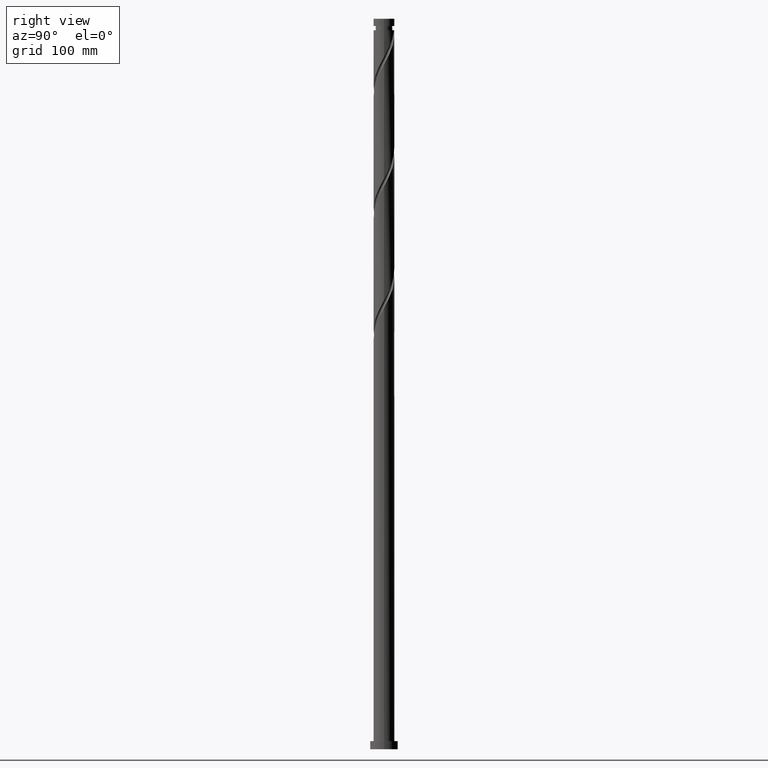
[diagram: clean part render]
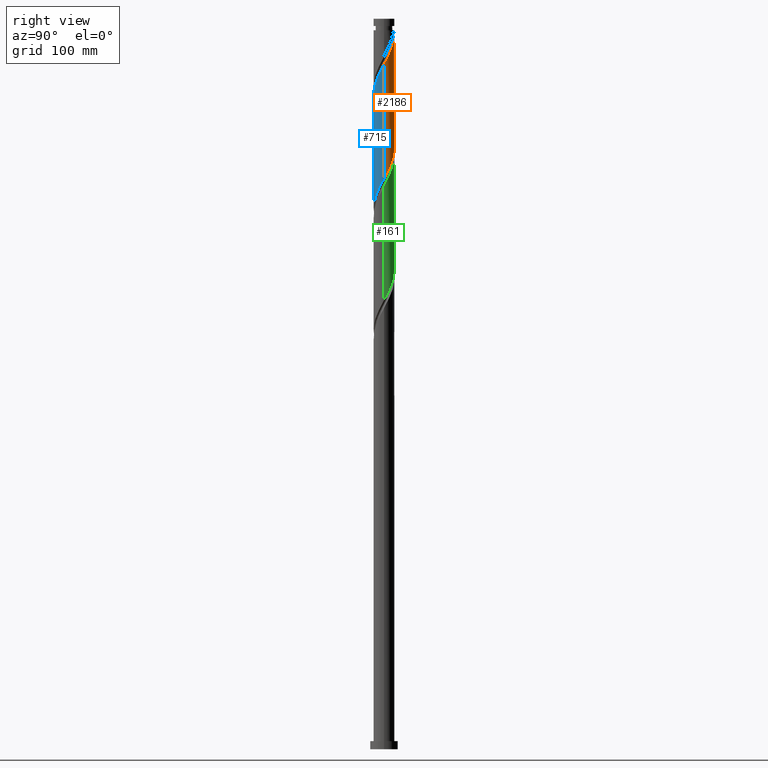
[diagram: same view with three faces highlighted in distinct colors, each labeled with its STEP entity id]
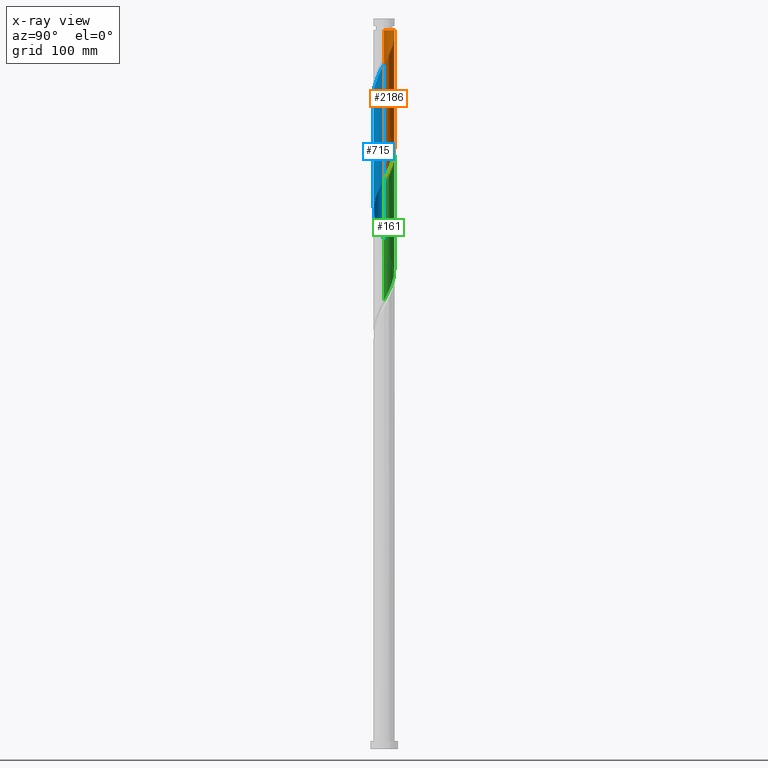
[diagram: x-ray of the same camera — body ghosted, the three highlighted faces saturated]
A machine part, right view with three faces highlighted in distinct colors.
The next image is the same camera in x-ray (body ghosted, the three faces saturated) — at least one of them is partly hidden behind the body in this view.
Their STEP definitions:

[orange] entity #2186 — the highlighted cylindrical surface (edge-blend (fillet) strip) has radius 9 mm, axis along (-0, -0, -1).
#3 = VECTOR ( 'NONE', #1071, 1000.000000000000000 ) ;
#7 = ORIENTED_EDGE ( 'NONE', *, *, #856, .F. ) ;
#9 = CARTESIAN_POINT ( 'NONE',  ( 5.334239913606442229, 7.296670144813490744, 606.2723796098241564 ) ) ;
#20 = CARTESIAN_POINT ( 'NONE',  ( 0.000000000000000000, 0.000000000000000000, 620.1694384333534344 ) ) ;
#138 = CARTESIAN_POINT ( 'NONE',  ( 0.1398118462164806008, 8.998913970455413747, 518.2576737274711149 ) ) ;
#148 = CARTESIAN_POINT ( 'NONE',  ( -9.000000000000003553, 0.4861798531133874612, 543.8637279760348520 ) ) ;
#178 = CARTESIAN_POINT ( 'NONE',  ( 6.584173963111356720, 6.192266457575213323, 603.1841443157065896 ) ) ;
#181 = CARTESIAN_POINT ( 'NONE',  ( -0.9736840269372216694, 8.985958494997177581, 618.6253207862946510 ) ) ;
#191 = CARTESIAN_POINT ( 'NONE',  ( 9.000000000000017764, 9.262020929133015443E-16, 590.5712296586592629 ) ) ;
#193 = CARTESIAN_POINT ( 'NONE',  ( -2.338169303687815503, 8.730891991395633767, 522.8900266686475788 ) ) ;
#213 = CARTESIAN_POINT ( 'NONE',  ( 9.000000000000003553, -6.782189519074858597E-15, 492.2676472080474923 ) ) ;
#218 = CIRCLE ( 'NONE', #1444, 8.999999999999936051 ) ;
#238 = CARTESIAN_POINT ( 'NONE',  ( 6.773362270530288498, 5.984736770341791079, 504.3606149039416664 ) ) ;
#299 = CARTESIAN_POINT ( 'NONE',  ( -8.376464026777835414, 3.395638535860549645, 538.3312031392357540 ) ) ;
#319 = EDGE_CURVE ( 'NONE', #1069, #1993, #218, .T. ) ;
#324 = CARTESIAN_POINT ( 'NONE',  ( -5.334239913606435124, 7.296670144813479197, 529.0664972568827125 ) ) ;
#337 = CARTESIAN_POINT ( 'NONE',  ( -3.902654721559266626, 8.152594481661372683, 525.9782619627652593 ) ) ;
#354 = LINE ( 'NONE', #1033, #3 ) ;
#405 = CARTESIAN_POINT ( 'NONE',  ( 4.856188172445342843, 7.577429408038192982, 508.9929678451181871 ) ) ;
#427 = EDGE_CURVE ( 'NONE', #831, #1993, #742, .T. ) ;
#476 = EDGE_LOOP ( 'NONE', ( #496, #1335, #583, #7, #872 ) ) ;
#486 = CARTESIAN_POINT ( 'NONE',  ( 2.608270746646625504, 8.654041505002840751, 513.6253207862946510 ) ) ;
#496 = ORIENTED_EDGE ( 'NONE', *, *, #427, .F. ) ;
#511 = CARTESIAN_POINT ( 'NONE',  ( 7.993177945963313213, 4.136315549394891988, 598.5517913745300120 ) ) ;
#522 = CARTESIAN_POINT ( 'NONE',  ( 4.618447317582855760, 7.724632313237438375, 607.8164972568828262 ) ) ;
#564 = CARTESIAN_POINT ( 'NONE',  ( 8.477908499574516199, 3.133780166343278051, 498.1841443157063622 ) ) ;
#583 = ORIENTED_EDGE ( 'NONE', *, *, #692, .F. ) ;
#587 =( BOUNDED_CURVE ( )  B_SPLINE_CURVE ( 2, ( #659, #148, #1498, #809, #2012, #299, #1482, #1317, #1169, #1470, #1842, #324, #834, #337, #1014, #193, #1544, #1311, #138, #2167, #2005, #486, #1163, #1899, #405, #752, #1425, #238, #1414, #2098, #1924, #564, #2068, #907, #1413, #1568, #1251 ),
 .UNSPECIFIED., .F., .T. ) 
 B_SPLINE_CURVE_WITH_KNOTS ( ( 3, 2, 2, 2, 2, 2, 2, 2, 2, 2, 2, 2, 2, 2, 2, 2, 2, 2, 3 ),
 ( 0.4295293573162904943, 0.4338235294117647189, 0.4411764705882352811, 0.4485294117647058987, 0.4558823529411764608, 0.4632352941176470784, 0.4705882352941176405, 0.4779411764705882582, 0.4852941176470588203, 0.4926470588235294379, 0.5000000000000000000, 0.5073529411764705621, 0.5147058823529411242, 0.5220588235294117974, 0.5294117647058823595, 0.5367647058823529216, 0.5441176470588234837, 0.5514705882352941568, 0.5545293573162903833 ),
 .UNSPECIFIED. ) 
 CURVE ( )  GEOMETRIC_REPRESENTATION_ITEM ( )  RATIONAL_B_SPLINE_CURVE ( ( 0.9072066346052996000, 0.9068261157890665780, 0.9090909090909375934, 0.9052128875409690689, 0.9090909090909375934, 0.9052128875409690689, 0.9090909090909375934, 0.9052128875409690689, 0.9090909090909375934, 0.9052128875409690689, 0.9090909090909375934, 0.9052128875409690689, 0.9090909090909375934, 0.9052128875409690689, 0.9090909090909375934, 0.9052128875409690689, 0.9090909090909375934, 0.9052128875409690689, 0.9090909090909375934, 0.9052128875409690689, 0.9090909090909375934, 0.9052128875409690689, 0.9090909090909375934, 0.9052128875409690689, 0.9090909090909375934, 0.9052128875409690689, 0.9090909090909375934, 0.9052128875409690689, 0.9090909090909375934, 0.9052128875409690689, 0.9090909090909375934, 0.9052128875409690689, 0.9090909090909375934, 0.9052128875409690689, 0.9090909090909375934, 0.9074776808428401953, 0.9072066346052993779 ) ) 
 REPRESENTATION_ITEM ( '' )  );
#615 = EDGE_CURVE ( 'NONE', #831, #883, #807, .T. ) ;
#646 = CARTESIAN_POINT ( 'NONE',  ( 9.000000000000001776, 1.102182119232617911E-15, 630.0000000000000000 ) ) ;
#659 = CARTESIAN_POINT ( 'NONE',  ( -9.000000000000003553, 1.165221987858676384E-15, 544.7676472080476060 ) ) ;
#676 = CARTESIAN_POINT ( 'NONE',  ( 8.617124889607055138, 2.597144323466611393, 595.4635560804121042 ) ) ;
#692 = EDGE_CURVE ( 'NONE', #1960, #883, #587, .T. ) ;
#742 =( BOUNDED_CURVE ( )  B_SPLINE_CURVE ( 2, ( #2042, #839, #1516, #2187, #676, #1346, #511, #1190, #1857, #178, #1528, #9, #522, #1200, #886, #1390, #1021, #1693, #1563, #181, #854 ),
 .UNSPECIFIED., .F., .T. ) 
 B_SPLINE_CURVE_WITH_KNOTS ( ( 3, 2, 2, 2, 2, 2, 2, 2, 2, 2, 3 ),
 ( 0.6795293573162904943, 0.6838235294117647189, 0.6911764705882352811, 0.6985294117647058432, 0.7058823529411764053, 0.7132352941176470784, 0.7205882352941176405, 0.7279411764705883137, 0.7352941176470588758, 0.7426470588235294379, 0.7500000000000000000 ),
 .UNSPECIFIED. ) 
 CURVE ( )  GEOMETRIC_REPRESENTATION_ITEM ( )  RATIONAL_B_SPLINE_CURVE ( ( 0.9072066346053047070, 0.9068261157890717961, 0.9090909090909431445, 0.9052128875409741759, 0.9090909090909431445, 0.9052128875409741759, 0.9090909090909431445, 0.9052128875409741759, 0.9090909090909431445, 0.9052128875409741759, 0.9090909090909431445, 0.9052128875409741759, 0.9090909090909431445, 0.9052128875409741759, 0.9090909090909431445, 0.9052128875409741759, 0.9090909090909431445, 0.9052128875409741759, 0.9090909090909431445, 0.9052128875409741759, 0.9090909090909431445 ) ) 
 REPRESENTATION_ITEM ( '' )  );
#752 = CARTESIAN_POINT ( 'NONE',  ( 5.558340410535743459, 7.127437305141989476, 507.4488501980592901 ) ) ;
#807 = LINE ( 'NONE', #646, #1734 ) ;
#809 = CARTESIAN_POINT ( 'NONE',  ( -8.857785752436246440, 1.798650111072676694, 541.4194384333534344 ) ) ;
#831 = VERTEX_POINT ( 'NONE', #191 ) ;
#834 = CARTESIAN_POINT ( 'NONE',  ( -4.618447317582850431, 7.724632313237429493, 527.5223796098240427 ) ) ;
#839 = CARTESIAN_POINT ( 'NONE',  ( 9.000000000000015987, 0.4861798531133852963, 591.4751488906720169 ) ) ;
#854 = CARTESIAN_POINT ( 'NONE',  ( -1.790977386791859249, 8.820000000000005613, 620.1694384333533208 ) ) ;
#856 = EDGE_CURVE ( 'NONE', #1069, #1960, #354, .T. ) ;
#872 = ORIENTED_EDGE ( 'NONE', *, *, #319, .T. ) ;
#883 = VERTEX_POINT ( 'NONE', #213 ) ;
#886 = CARTESIAN_POINT ( 'NONE',  ( 3.120412012623549725, 8.441743236528512995, 610.9047325510005066 ) ) ;
#898 = FACE_OUTER_BOUND ( 'NONE', #476, .T. ) ;
#907 = CARTESIAN_POINT ( 'NONE',  ( 8.909386591171969627, 1.522610004948561135, 495.0959090215886249 ) ) ;
#985 = CARTESIAN_POINT ( 'NONE',  ( -1.790977386791859249, 8.820000000000005613, 620.1694384333533208 ) ) ;
#1006 = DIRECTION ( 'NONE',  ( -1.000000000000000000, 0.000000000000000000, 0.000000000000000000 ) ) ;
#1014 = CARTESIAN_POINT ( 'NONE',  ( -3.120412012623539511, 8.441743236528505889, 524.4341443157064759 ) ) ;
#1021 = CARTESIAN_POINT ( 'NONE',  ( 1.516114819096040955, 8.871380718654656050, 613.9929678451183008 ) ) ;
#1033 = CARTESIAN_POINT ( 'NONE',  ( -9.000000000000001776, 0.000000000000000000, 630.0000000000000000 ) ) ;
#1069 = VERTEX_POINT ( 'NONE', #1318 ) ;
#1071 = DIRECTION ( 'NONE',  ( -0.000000000000000000, -0.000000000000000000, -1.000000000000000000 ) ) ;
#1163 = CARTESIAN_POINT ( 'NONE',  ( 3.381153340500779869, 8.340731507968619951, 512.0812031392358676 ) ) ;
#1169 = CARTESIAN_POINT ( 'NONE',  ( -7.097032914130057435, 5.534629510252214502, 533.6988501980595174 ) ) ;
#1190 = CARTESIAN_POINT ( 'NONE',  ( 7.609891865148780354, 4.876992562929229003, 600.0959090215889091 ) ) ;
#1200 = CARTESIAN_POINT ( 'NONE',  ( 3.902654721559274620, 8.152594481661386894, 609.3606149039418369 ) ) ;
#1251 = CARTESIAN_POINT ( 'NONE',  ( 9.000000000000003553, -6.782189519074858597E-15, 492.2676472080474923 ) ) ;
#1311 = CARTESIAN_POINT ( 'NONE',  ( -0.6940603345042588579, 9.011869445913658794, 519.8017913745300120 ) ) ;
#1315 = DIRECTION ( 'NONE',  ( -0.000000000000000000, -0.000000000000000000, -1.000000000000000000 ) ) ;
#1317 = CARTESIAN_POINT ( 'NONE',  ( -7.609891865148765255, 4.876992562929225450, 535.2429678451180735 ) ) ;
#1318 = CARTESIAN_POINT ( 'NONE',  ( -8.999999999999936051, 0.000000000000000000, 620.1694384333534344 ) ) ;
#1335 = ORIENTED_EDGE ( 'NONE', *, *, #615, .T. ) ;
#1346 = CARTESIAN_POINT ( 'NONE',  ( 8.376464026777849625, 3.395638535860556306, 597.0076737274711149 ) ) ;
#1390 = CARTESIAN_POINT ( 'NONE',  ( 2.338169303687818612, 8.730891991395649754, 612.4488501980594037 ) ) ;
#1393 = CARTESIAN_POINT ( 'NONE',  ( 0.000000000000000000, 0.000000000000000000, 630.0000000000000000 ) ) ;
#1413 = CARTESIAN_POINT ( 'NONE',  ( 8.973426399605228809, 0.6910995954766543381, 493.5517913745300689 ) ) ;
#1414 = CARTESIAN_POINT ( 'NONE',  ( 7.265543836342421180, 5.311484986535003117, 502.8164972568830535 ) ) ;
#1425 = CARTESIAN_POINT ( 'NONE',  ( 6.165851340533021308, 6.556087037741888501, 505.9047325510006772 ) ) ;
#1444 = AXIS2_PLACEMENT_3D ( 'NONE', #20, #1504, #1006 ) ;
#1470 = CARTESIAN_POINT ( 'NONE',  ( -6.584173963111345174, 6.192266457575203553, 532.1547325510003930 ) ) ;
#1482 = CARTESIAN_POINT ( 'NONE',  ( -7.993177945963301667, 4.136315549394887547, 536.7870854921768569 ) ) ;
#1498 = CARTESIAN_POINT ( 'NONE',  ( -8.947625980237367216, 0.9695304625339670190, 542.9635560804125589 ) ) ;
#1504 = DIRECTION ( 'NONE',  ( -0.000000000000000000, -0.000000000000000000, -1.000000000000000000 ) ) ;
#1516 = CARTESIAN_POINT ( 'NONE',  ( 8.947625980237379650, 0.9695304625339665749, 592.3753207862945374 ) ) ;
#1528 = CARTESIAN_POINT ( 'NONE',  ( 5.959206938358901695, 6.744468301194348925, 604.7282619627653730 ) ) ;
#1544 = CARTESIAN_POINT ( 'NONE',  ( -1.516114819096037181, 8.871380718654645392, 521.3459090215887954 ) ) ;
#1563 = CARTESIAN_POINT ( 'NONE',  ( -0.1398118462164821829, 8.998913970455420852, 617.0812031392357540 ) ) ;
#1568 = CARTESIAN_POINT ( 'NONE',  ( 9.000000000000001776, 0.3460606909891526528, 492.9110529601072699 ) ) ;
#1693 = CARTESIAN_POINT ( 'NONE',  ( 0.6940603345042639649, 9.011869445913680110, 615.5370854921771979 ) ) ;
#1707 = DIRECTION ( 'NONE',  ( -1.000000000000000000, 0.000000000000000000, 0.000000000000000000 ) ) ;
#1734 = VECTOR ( 'NONE', #1315, 1000.000000000000000 ) ;
#1842 = CARTESIAN_POINT ( 'NONE',  ( -5.959206938358891925, 6.744468301194342708, 530.6106149039417232 ) ) ;
#1857 = CARTESIAN_POINT ( 'NONE',  ( 7.097032914130066317, 5.534629510252223383, 601.6400266686475788 ) ) ;
#1893 = DIRECTION ( 'NONE',  ( -0.000000000000000000, -0.000000000000000000, -1.000000000000000000 ) ) ;
#1895 = CARTESIAN_POINT ( 'NONE',  ( -9.000000000000003553, 1.165221987858676384E-15, 544.7676472080476060 ) ) ;
#1899 = CARTESIAN_POINT ( 'NONE',  ( 4.154035934354940451, 8.027421510934395599, 510.5370854921770274 ) ) ;
#1924 = CARTESIAN_POINT ( 'NONE',  ( 8.117816950864536807, 3.886006684535740163, 499.7282619627652593 ) ) ;
#1960 = VERTEX_POINT ( 'NONE', #1895 ) ;
#1993 = VERTEX_POINT ( 'NONE', #985 ) ;
#2005 = CARTESIAN_POINT ( 'NONE',  ( 1.790977386791925641, 8.820000000000000284, 515.1694384333535481 ) ) ;
#2012 = CARTESIAN_POINT ( 'NONE',  ( -8.617124889607044480, 2.597144323466612725, 539.8753207862947647 ) ) ;
#2042 = CARTESIAN_POINT ( 'NONE',  ( 9.000000000000017764, 9.262020929133015443E-16, 590.5712296586592629 ) ) ;
#2056 = CYLINDRICAL_SURFACE ( 'NONE', #2126, 9.000000000000001776 ) ;
#2068 = CARTESIAN_POINT ( 'NONE',  ( 8.693647545373245578, 2.328195085645922813, 496.6400266686476357 ) ) ;
#2098 = CARTESIAN_POINT ( 'NONE',  ( 7.757725402154549421, 4.638233202728207161, 501.2723796098240427 ) ) ;
#2126 = AXIS2_PLACEMENT_3D ( 'NONE', #1393, #1893, #1707 ) ;
#2167 = CARTESIAN_POINT ( 'NONE',  ( 0.9736840269372206702, 8.985958494997161594, 516.7135560804122179 ) ) ;
#2186 = ADVANCED_FACE ( 'NONE', ( #898 ), #2056, .T. ) ;
#2187 = CARTESIAN_POINT ( 'NONE',  ( 8.857785752436262428, 1.798650111072676472, 593.9194384333535481 ) ) ;

[blue] entity #715 — the highlighted cylindrical surface (edge-blend (fillet) strip) has radius 9 mm, axis along (-0, -0, -1).
#4 = CARTESIAN_POINT ( 'NONE',  ( -2.338169303687822609, -8.730891991395644425, 559.9488501980595174 ) ) ;
#28 = CARTESIAN_POINT ( 'NONE',  ( 4.856188172445347284, -7.577429408038199199, 573.8459090215886818 ) ) ;
#31 = VERTEX_POINT ( 'NONE', #962 ) ;
#38 = CARTESIAN_POINT ( 'NONE',  ( -9.000000000000017764, -4.481623030225652761E-16, 538.0712296586594903 ) ) ;
#135 = ORIENTED_EDGE ( 'NONE', *, *, #1889, .T. ) ;
#149 = CARTESIAN_POINT ( 'NONE',  ( 9.000000000000019540, -0.3460606909891417171, 589.9278239065995422 ) ) ;
#160 = CARTESIAN_POINT ( 'NONE',  ( 2.338169303687814171, -8.730891991395633767, 470.3900266686475220 ) ) ;
#164 = CARTESIAN_POINT ( 'NONE',  ( -8.857785752436262428, -1.798650111072677582, 541.4194384333536618 ) ) ;
#172 = CARTESIAN_POINT ( 'NONE',  ( -8.477908499574517975, -3.133780166343278939, 445.6841443157064759 ) ) ;
#174 = CARTESIAN_POINT ( 'NONE',  ( -8.617124889607055138, -2.597144323466614502, 542.9635560804124452 ) ) ;
#191 = CARTESIAN_POINT ( 'NONE',  ( 9.000000000000017764, 9.262020929133015443E-16, 590.5712296586592629 ) ) ;
#197 = CARTESIAN_POINT ( 'NONE',  ( -7.609891865148779466, -4.876992562929230779, 547.5959090215886818 ) ) ;
#207 = CARTESIAN_POINT ( 'NONE',  ( 0.000000000000000000, 0.000000000000000000, 630.0000000000000000 ) ) ;
#213 = CARTESIAN_POINT ( 'NONE',  ( 9.000000000000003553, -6.782189519074858597E-15, 492.2676472080474923 ) ) ;
#296 = ORIENTED_EDGE ( 'NONE', *, *, #1105, .F. ) ;
#308 = CARTESIAN_POINT ( 'NONE',  ( -8.973426399605228809, -0.6910995954766550042, 441.0517913745301826 ) ) ;
#310 = CARTESIAN_POINT ( 'NONE',  ( 7.757725402154564520, -4.638233202728213378, 581.5664972568830535 ) ) ;
#321 = CARTESIAN_POINT ( 'NONE',  ( -9.000000000000007105, -1.873318426634333512E-14, 439.7676472080477197 ) ) ;
#325 = CARTESIAN_POINT ( 'NONE',  ( 1.790977386791923642, -8.820000000000012719, 567.6694384333534344 ) ) ;
#334 = CARTESIAN_POINT ( 'NONE',  ( -8.909386591171969627, -1.522610004948563578, 442.5959090215888523 ) ) ;
#338 = CARTESIAN_POINT ( 'NONE',  ( -3.120412012623544395, -8.441743236528516547, 558.4047325510005066 ) ) ;
#359 = CARTESIAN_POINT ( 'NONE',  ( 6.165851340533024860, -6.556087037741899159, 576.9341443157063622 ) ) ;
#370 = CARTESIAN_POINT ( 'NONE',  ( 7.097032914130057435, -5.534629510252212725, 481.1988501980593469 ) ) ;
#376 = CARTESIAN_POINT ( 'NONE',  ( 5.334239913606436012, -7.296670144813479197, 476.5664972568828830 ) ) ;
#467 = CARTESIAN_POINT ( 'NONE',  ( 4.618447317582850431, -7.724632313237429493, 475.0223796098242133 ) ) ;
#493 = CARTESIAN_POINT ( 'NONE',  ( -0.6940603345042627437, -9.011869445913680110, 563.0370854921769705 ) ) ;
#510 = ORIENTED_EDGE ( 'NONE', *, *, #1206, .F. ) ;
#516 = CARTESIAN_POINT ( 'NONE',  ( -1.790977386791924753, -8.820000000000000284, 462.6694384333536050 ) ) ;
#518 = CARTESIAN_POINT ( 'NONE',  ( 8.693647545373256236, -2.328195085645923257, 586.1988501980592901 ) ) ;
#537 = CARTESIAN_POINT ( 'NONE',  ( 6.584173963111345174, -6.192266457575206218, 479.6547325510005635 ) ) ;
#615 = EDGE_CURVE ( 'NONE', #831, #883, #807, .T. ) ;
#646 = CARTESIAN_POINT ( 'NONE',  ( 9.000000000000001776, 1.102182119232617911E-15, 630.0000000000000000 ) ) ;
#662 = CARTESIAN_POINT ( 'NONE',  ( -9.000000000000017764, -4.481623030225652761E-16, 538.0712296586594903 ) ) ;
#672 = CARTESIAN_POINT ( 'NONE',  ( 7.265543836342427397, -5.311484986535008446, 580.0223796098241564 ) ) ;
#682 = CARTESIAN_POINT ( 'NONE',  ( 1.516114819096038735, -8.871380718654645392, 468.8459090215889091 ) ) ;
#685 = CARTESIAN_POINT ( 'NONE',  ( 8.909386591171982062, -1.522610004948567797, 587.7429678451181871 ) ) ;
#704 = CARTESIAN_POINT ( 'NONE',  ( 9.000000000000005329, -0.4861798531133721402, 491.3637279760347951 ) ) ;
#712 = AXIS2_PLACEMENT_3D ( 'NONE', #207, #713, #1791 ) ;
#713 = DIRECTION ( 'NONE',  ( -0.000000000000000000, -0.000000000000000000, -1.000000000000000000 ) ) ;
#715 = ADVANCED_FACE ( 'NONE', ( #858 ), #1216, .T. ) ;
#716 = VECTOR ( 'NONE', #1698, 1000.000000000000000 ) ;
#806 = CARTESIAN_POINT ( 'NONE',  ( -3.381153340500782090, -8.340731507968618175, 459.5812031392359245 ) ) ;
#807 = LINE ( 'NONE', #646, #1734 ) ;
#822 = CARTESIAN_POINT ( 'NONE',  ( 8.947625980237367216, -0.9695304625339699056, 490.4635560804123315 ) ) ;
#831 = VERTEX_POINT ( 'NONE', #191 ) ;
#835 = CARTESIAN_POINT ( 'NONE',  ( -7.993177945963313213, -4.136315549394891988, 546.0517913745298983 ) ) ;
#858 = FACE_OUTER_BOUND ( 'NONE', #1159, .T. ) ;
#883 = VERTEX_POINT ( 'NONE', #213 ) ;
#949 =( BOUNDED_CURVE ( )  B_SPLINE_CURVE ( 2, ( #1549, #704, #822, #1499, #1218, #1719, #1047, #1883, #370, #537, #1727, #376, #467, #1001, #1340, #160, #682, #1355, #1143, #1011, #516, #1650, #806, #1996, #2010, #1153, #1839, #1828, #1815, #1852, #1392, #172, #1684, #334, #308, #1328, #321 ),
 .UNSPECIFIED., .F., .T. ) 
 B_SPLINE_CURVE_WITH_KNOTS ( ( 3, 2, 2, 2, 2, 2, 2, 2, 2, 2, 2, 2, 2, 2, 2, 2, 2, 2, 3 ),
 ( 0.5545293573162903833, 0.5588235294117647189, 0.5661764705882352811, 0.5735294117647058432, 0.5808823529411765163, 0.5882352941176470784, 0.5955882352941176405, 0.6029411764705882026, 0.6102941176470588758, 0.6176470588235294379, 0.6250000000000000000, 0.6323529411764705621, 0.6397058823529411242, 0.6470588235294117974, 0.6544117647058823595, 0.6617647058823529216, 0.6691176470588234837, 0.6764705882352941568, 0.6795293573162900502 ),
 .UNSPECIFIED. ) 
 CURVE ( )  GEOMETRIC_REPRESENTATION_ITEM ( )  RATIONAL_B_SPLINE_CURVE ( ( 0.9072066346052993779, 0.9068261157890664670, 0.9090909090909375934, 0.9052128875409690689, 0.9090909090909375934, 0.9052128875409690689, 0.9090909090909375934, 0.9052128875409690689, 0.9090909090909375934, 0.9052128875409690689, 0.9090909090909375934, 0.9052128875409690689, 0.9090909090909375934, 0.9052128875409690689, 0.9090909090909375934, 0.9052128875409690689, 0.9090909090909375934, 0.9052128875409690689, 0.9090909090909375934, 0.9052128875409690689, 0.9090909090909375934, 0.9052128875409690689, 0.9090909090909375934, 0.9052128875409690689, 0.9090909090909375934, 0.9052128875409690689, 0.9090909090909375934, 0.9052128875409690689, 0.9090909090909375934, 0.9052128875409690689, 0.9090909090909375934, 0.9052128875409690689, 0.9090909090909375934, 0.9052128875409690689, 0.9090909090909375934, 0.9074776808428403063, 0.9072066346052993779 ) ) 
 REPRESENTATION_ITEM ( '' )  );
#962 = CARTESIAN_POINT ( 'NONE',  ( -9.000000000000007105, -1.873318426634333512E-14, 439.7676472080477197 ) ) ;
#989 = CARTESIAN_POINT ( 'NONE',  ( 0.1398118462164794629, -8.998913970455422628, 564.5812031392358676 ) ) ;
#1001 = CARTESIAN_POINT ( 'NONE',  ( 3.902654721559262629, -8.152594481661374459, 473.4782619627652025 ) ) ;
#1003 = CARTESIAN_POINT ( 'NONE',  ( 5.558340410535752341, -7.127437305142000135, 575.3900266686476925 ) ) ;
#1011 = CARTESIAN_POINT ( 'NONE',  ( -0.9736840269372201151, -8.985958494997161594, 464.2135560804123315 ) ) ;
#1015 = CARTESIAN_POINT ( 'NONE',  ( 6.773362270530297380, -5.984736770341805290, 578.4782619627652593 ) ) ;
#1027 = CARTESIAN_POINT ( 'NONE',  ( -8.376464026777849625, -3.395638535860555418, 544.5076737274712286 ) ) ;
#1047 = CARTESIAN_POINT ( 'NONE',  ( 7.993177945963301667, -4.136315549394891100, 484.2870854921770274 ) ) ;
#1048 = LINE ( 'NONE', #1865, #716 ) ;
#1105 = EDGE_CURVE ( 'NONE', #1827, #831, #1490, .T. ) ;
#1143 = CARTESIAN_POINT ( 'NONE',  ( -0.1398118462164825715, -8.998913970455413747, 465.7576737274711718 ) ) ;
#1153 = CARTESIAN_POINT ( 'NONE',  ( -5.558340410535744347, -7.127437305141985924, 454.9488501980592901 ) ) ;
#1159 = EDGE_LOOP ( 'NONE', ( #1321, #296, #135, #510 ) ) ;
#1171 = CARTESIAN_POINT ( 'NONE',  ( 0.9736840269372226686, -8.985958494997177581, 566.1253207862946510 ) ) ;
#1186 = CARTESIAN_POINT ( 'NONE',  ( 8.117816950864543912, -3.886006684535749489, 583.1106149039416096 ) ) ;
#1197 = CARTESIAN_POINT ( 'NONE',  ( -5.334239913606445782, -7.296670144813488967, 553.7723796098241564 ) ) ;
#1206 = EDGE_CURVE ( 'NONE', #883, #31, #949, .T. ) ;
#1216 = CYLINDRICAL_SURFACE ( 'NONE', #712, 9.000000000000001776 ) ;
#1218 = CARTESIAN_POINT ( 'NONE',  ( 8.617124889607046256, -2.597144323466612725, 487.3753207862947079 ) ) ;
#1315 = DIRECTION ( 'NONE',  ( -0.000000000000000000, -0.000000000000000000, -1.000000000000000000 ) ) ;
#1321 = ORIENTED_EDGE ( 'NONE', *, *, #615, .F. ) ;
#1328 = CARTESIAN_POINT ( 'NONE',  ( -8.999999999999998224, -0.3460606909891903449, 440.4110529601073836 ) ) ;
#1340 = CARTESIAN_POINT ( 'NONE',  ( 3.120412012623539955, -8.441743236528505889, 471.9341443157064759 ) ) ;
#1342 = CARTESIAN_POINT ( 'NONE',  ( -5.959206938358899919, -6.744468301194349813, 552.2282619627652593 ) ) ;
#1355 = CARTESIAN_POINT ( 'NONE',  ( 0.6940603345042588579, -9.011869445913658794, 467.3017913745300120 ) ) ;
#1376 = CARTESIAN_POINT ( 'NONE',  ( -6.584173963111356720, -6.192266457575213323, 550.6841443157065896 ) ) ;
#1392 = CARTESIAN_POINT ( 'NONE',  ( -8.117816950864535031, -3.886006684535740163, 447.2282619627652025 ) ) ;
#1490 =( BOUNDED_CURVE ( )  B_SPLINE_CURVE ( 2, ( #662, #1843, #2049, #164, #174, #1027, #835, #197, #1524, #1376, #1342, #1197, #2173, #1512, #338, #4, #2059, #493, #989, #1171, #325, #1831, #1874, #2183, #28, #1003, #359, #1015, #672, #310, #1186, #1686, #518, #685, #1663, #149, #1697 ),
 .UNSPECIFIED., .F., .T. ) 
 B_SPLINE_CURVE_WITH_KNOTS ( ( 3, 2, 2, 2, 2, 2, 2, 2, 2, 2, 2, 2, 2, 2, 2, 2, 2, 2, 3 ),
 ( 0.5545293573162902723, 0.5588235294117647189, 0.5661764705882352811, 0.5735294117647058432, 0.5808823529411764053, 0.5882352941176470784, 0.5955882352941176405, 0.6029411764705883137, 0.6102941176470588758, 0.6176470588235294379, 0.6250000000000000000, 0.6323529411764705621, 0.6397058823529411242, 0.6470588235294116863, 0.6544117647058823595, 0.6617647058823529216, 0.6691176470588235947, 0.6764705882352941568, 0.6795293573162904943 ),
 .UNSPECIFIED. ) 
 CURVE ( )  GEOMETRIC_REPRESENTATION_ITEM ( )  RATIONAL_B_SPLINE_CURVE ( ( 0.9072066346053047070, 0.9068261157890715740, 0.9090909090909431445, 0.9052128875409741759, 0.9090909090909431445, 0.9052128875409741759, 0.9090909090909431445, 0.9052128875409741759, 0.9090909090909431445, 0.9052128875409741759, 0.9090909090909431445, 0.9052128875409741759, 0.9090909090909431445, 0.9052128875409741759, 0.9090909090909431445, 0.9052128875409741759, 0.9090909090909431445, 0.9052128875409741759, 0.9090909090909431445, 0.9052128875409741759, 0.9090909090909431445, 0.9052128875409741759, 0.9090909090909431445, 0.9052128875409741759, 0.9090909090909431445, 0.9052128875409741759, 0.9090909090909431445, 0.9052128875409741759, 0.9090909090909431445, 0.9052128875409741759, 0.9090909090909431445, 0.9052128875409741759, 0.9090909090909431445, 0.9052128875409741759, 0.9090909090909431445, 0.9074776808428455244, 0.9072066346053047070 ) ) 
 REPRESENTATION_ITEM ( '' )  );
#1499 = CARTESIAN_POINT ( 'NONE',  ( 8.857785752436246440, -1.798650111072677582, 488.9194384333533776 ) ) ;
#1512 = CARTESIAN_POINT ( 'NONE',  ( -3.902654721559273288, -8.152594481661386894, 556.8606149039414959 ) ) ;
#1524 = CARTESIAN_POINT ( 'NONE',  ( -7.097032914130067205, -5.534629510252219831, 549.1400266686475788 ) ) ;
#1549 = CARTESIAN_POINT ( 'NONE',  ( 9.000000000000003553, -6.782189519074858597E-15, 492.2676472080474923 ) ) ;
#1650 = CARTESIAN_POINT ( 'NONE',  ( -2.608270746646625504, -8.654041505002840751, 461.1253207862946510 ) ) ;
#1663 = CARTESIAN_POINT ( 'NONE',  ( 8.973426399605243020, -0.6910995954766591121, 589.2870854921768569 ) ) ;
#1684 = CARTESIAN_POINT ( 'NONE',  ( -8.693647545373245578, -2.328195085645921036, 444.1400266686475788 ) ) ;
#1686 = CARTESIAN_POINT ( 'NONE',  ( 8.477908499574528634, -3.133780166343287821, 584.6547325510003930 ) ) ;
#1697 = CARTESIAN_POINT ( 'NONE',  ( 9.000000000000017764, 9.262020929133015443E-16, 590.5712296586592629 ) ) ;
#1698 = DIRECTION ( 'NONE',  ( -0.000000000000000000, -0.000000000000000000, -1.000000000000000000 ) ) ;
#1719 = CARTESIAN_POINT ( 'NONE',  ( 8.376464026777838967, -3.395638535860547425, 485.8312031392357540 ) ) ;
#1727 = CARTESIAN_POINT ( 'NONE',  ( 5.959206938358891037, -6.744468301194342708, 478.1106149039416664 ) ) ;
#1734 = VECTOR ( 'NONE', #1315, 1000.000000000000000 ) ;
#1791 = DIRECTION ( 'NONE',  ( -1.000000000000000000, 0.000000000000000000, 0.000000000000000000 ) ) ;
#1815 = CARTESIAN_POINT ( 'NONE',  ( -7.265543836342422068, -5.311484986534998676, 450.3164972568830535 ) ) ;
#1827 = VERTEX_POINT ( 'NONE', #38 ) ;
#1828 = CARTESIAN_POINT ( 'NONE',  ( -6.773362270530288498, -5.984736770341791967, 451.8606149039415527 ) ) ;
#1831 = CARTESIAN_POINT ( 'NONE',  ( 2.608270746646629501, -8.654041505002851409, 569.2135560804124452 ) ) ;
#1839 = CARTESIAN_POINT ( 'NONE',  ( -6.165851340533016867, -6.556087037741892054, 453.4047325510006772 ) ) ;
#1843 = CARTESIAN_POINT ( 'NONE',  ( -9.000000000000017764, -0.4861798531133583179, 538.9751488906723580 ) ) ;
#1852 = CARTESIAN_POINT ( 'NONE',  ( -7.757725402154549421, -4.638233202728205384, 448.7723796098239859 ) ) ;
#1865 = CARTESIAN_POINT ( 'NONE',  ( -9.000000000000001776, 0.000000000000000000, 630.0000000000000000 ) ) ;
#1874 = CARTESIAN_POINT ( 'NONE',  ( 3.381153340500782978, -8.340731507968627056, 570.7576737274712286 ) ) ;
#1883 = CARTESIAN_POINT ( 'NONE',  ( 7.609891865148766144, -4.876992562929225450, 482.7429678451181303 ) ) ;
#1889 = EDGE_CURVE ( 'NONE', #1827, #31, #1048, .T. ) ;
#1996 = CARTESIAN_POINT ( 'NONE',  ( -4.154035934354939563, -8.027421510934395599, 458.0370854921768569 ) ) ;
#2010 = CARTESIAN_POINT ( 'NONE',  ( -4.856188172445342843, -7.577429408038192982, 456.4929678451181303 ) ) ;
#2049 = CARTESIAN_POINT ( 'NONE',  ( -8.947625980237377874, -0.9695304625339655757, 539.8753207862947647 ) ) ;
#2059 = CARTESIAN_POINT ( 'NONE',  ( -1.516114819096040067, -8.871380718654656050, 561.4929678451183008 ) ) ;
#2173 = CARTESIAN_POINT ( 'NONE',  ( -4.618447317582857536, -7.724632313237436598, 555.3164972568828262 ) ) ;
#2183 = CARTESIAN_POINT ( 'NONE',  ( 4.154035934354943116, -8.027421510934408033, 572.3017913745298983 ) ) ;

[green] entity #161 — the highlighted cylindrical surface (edge-blend (fillet) strip) has radius 9 mm, axis along (-0, -0, -1).
#1 = CARTESIAN_POINT ( 'NONE',  ( 0.6940603345042639649, 9.011869445913680110, 510.5370854921772548 ) ) ;
#31 = VERTEX_POINT ( 'NONE', #962 ) ;
#38 = CARTESIAN_POINT ( 'NONE',  ( -9.000000000000017764, -4.481623030225652761E-16, 538.0712296586594903 ) ) ;
#41 = CARTESIAN_POINT ( 'NONE',  ( 0.1398118462164806008, 8.998913970455413747, 413.2576737274711149 ) ) ;
#59 = CARTESIAN_POINT ( 'NONE',  ( 6.773362270530288498, 5.984736770341791079, 399.3606149039416664 ) ) ;
#68 = CARTESIAN_POINT ( 'NONE',  ( 9.000000000000003553, -6.782189519074858597E-15, 387.2676472080476060 ) ) ;
#130 = CARTESIAN_POINT ( 'NONE',  ( -1.790977386791922754, 8.820000000000012719, 515.1694384333535481 ) ) ;
#133 = CARTESIAN_POINT ( 'NONE',  ( -4.154035934354943116, 8.027421510934408033, 519.8017913745301257 ) ) ;
#143 = CARTESIAN_POINT ( 'NONE',  ( 7.993177945963313213, 4.136315549394891988, 493.5517913745300120 ) ) ;
#157 = DIRECTION ( 'NONE',  ( -0.000000000000000000, -0.000000000000000000, -1.000000000000000000 ) ) ;
#161 = ADVANCED_FACE ( 'NONE', ( #1554 ), #1151, .T. ) ;
#167 = CARTESIAN_POINT ( 'NONE',  ( 9.000000000000001776, 1.102182119232617911E-15, 630.0000000000000000 ) ) ;
#215 = CARTESIAN_POINT ( 'NONE',  ( 5.334239913606442229, 7.296670144813490744, 501.2723796098241564 ) ) ;
#224 = CARTESIAN_POINT ( 'NONE',  ( 0.9736840269372206702, 8.985958494997161594, 411.7135560804122179 ) ) ;
#233 = CARTESIAN_POINT ( 'NONE',  ( 8.909386591171969627, 1.522610004948561135, 390.0959090215886818 ) ) ;
#243 = CARTESIAN_POINT ( 'NONE',  ( -5.334239913606435124, 7.296670144813479197, 424.0664972568828262 ) ) ;
#278 = CARTESIAN_POINT ( 'NONE',  ( -9.000000000000015987, 0.3460606909891661420, 537.4278239065997695 ) ) ;
#290 = CARTESIAN_POINT ( 'NONE',  ( -9.000000000000017764, -4.481623030225652761E-16, 538.0712296586594903 ) ) ;
#335 = EDGE_CURVE ( 'NONE', #1166, #1022, #1031, .T. ) ;
#391 = CARTESIAN_POINT ( 'NONE',  ( -5.959206938358891925, 6.744468301194342708, 425.6106149039417801 ) ) ;
#422 = CARTESIAN_POINT ( 'NONE',  ( -6.584173963111345174, 6.192266457575203553, 427.1547325510005066 ) ) ;
#477 = CARTESIAN_POINT ( 'NONE',  ( 8.947625980237379650, 0.9695304625339665749, 487.3753207862945374 ) ) ;
#490 = CARTESIAN_POINT ( 'NONE',  ( 8.617124889607055138, 2.597144323466611393, 490.4635560804123315 ) ) ;
#501 = VECTOR ( 'NONE', #994, 1000.000000000000000 ) ;
#504 = CARTESIAN_POINT ( 'NONE',  ( 3.120412012623549725, 8.441743236528512995, 505.9047325510005635 ) ) ;
#560 = CARTESIAN_POINT ( 'NONE',  ( 4.154035934354940451, 8.027421510934395599, 405.5370854921769705 ) ) ;
#570 = CARTESIAN_POINT ( 'NONE',  ( -7.097032914130057435, 5.534629510252214502, 428.6988501980593469 ) ) ;
#634 = CARTESIAN_POINT ( 'NONE',  ( -6.165851340533023972, 6.556087037741899159, 524.4341443157064759 ) ) ;
#657 = ORIENTED_EDGE ( 'NONE', *, *, #1889, .F. ) ;
#658 = CARTESIAN_POINT ( 'NONE',  ( 9.000000000000015987, 0.4861798531133915691, 486.4751488906720738 ) ) ;
#663 =( BOUNDED_CURVE ( )  B_SPLINE_CURVE ( 2, ( #2181, #658, #477, #1054, #490, #1660, #143, #1673, #1510, #832, #670, #215, #820, #1566, #504, #1183, #1494, #1, #976, #723, #130, #1284, #2163, #133, #1461, #1500, #634, #1172, #1135, #979, #1964, #2143, #1642, #1989, #1844, #278, #290 ),
 .UNSPECIFIED., .F., .T. ) 
 B_SPLINE_CURVE_WITH_KNOTS ( ( 3, 2, 2, 2, 2, 2, 2, 2, 2, 2, 2, 2, 2, 2, 2, 2, 2, 2, 3 ),
 ( 0.4295293573162905498, 0.4338235294117647189, 0.4411764705882352811, 0.4485294117647058432, 0.4558823529411765163, 0.4632352941176470784, 0.4705882352941176405, 0.4779411764705882026, 0.4852941176470588758, 0.4926470588235294379, 0.5000000000000000000, 0.5073529411764705621, 0.5147058823529411242, 0.5220588235294116863, 0.5294117647058823595, 0.5367647058823529216, 0.5441176470588235947, 0.5514705882352941568, 0.5545293573162902723 ),
 .UNSPECIFIED. ) 
 CURVE ( )  GEOMETRIC_REPRESENTATION_ITEM ( )  RATIONAL_B_SPLINE_CURVE ( ( 0.9072066346053047070, 0.9068261157890717961, 0.9090909090909431445, 0.9052128875409741759, 0.9090909090909431445, 0.9052128875409741759, 0.9090909090909431445, 0.9052128875409741759, 0.9090909090909431445, 0.9052128875409741759, 0.9090909090909431445, 0.9052128875409741759, 0.9090909090909431445, 0.9052128875409741759, 0.9090909090909431445, 0.9052128875409741759, 0.9090909090909431445, 0.9052128875409741759, 0.9090909090909431445, 0.9052128875409741759, 0.9090909090909431445, 0.9052128875409741759, 0.9090909090909431445, 0.9052128875409741759, 0.9090909090909431445, 0.9052128875409741759, 0.9090909090909431445, 0.9052128875409741759, 0.9090909090909431445, 0.9052128875409741759, 0.9090909090909431445, 0.9052128875409741759, 0.9090909090909431445, 0.9052128875409741759, 0.9090909090909431445, 0.9074776808428455244, 0.9072066346053047070 ) ) 
 REPRESENTATION_ITEM ( '' )  );
#670 = CARTESIAN_POINT ( 'NONE',  ( 5.959206938358901695, 6.744468301194348925, 499.7282619627652025 ) ) ;
#716 = VECTOR ( 'NONE', #1698, 1000.000000000000000 ) ;
#723 = CARTESIAN_POINT ( 'NONE',  ( -0.9736840269372216694, 8.985958494997177581, 513.6253207862946510 ) ) ;
#729 = CARTESIAN_POINT ( 'NONE',  ( -8.857785752436246440, 1.798650111072676694, 436.4194384333533776 ) ) ;
#756 = CARTESIAN_POINT ( 'NONE',  ( -7.609891865148765255, 4.876992562929225450, 430.2429678451183008 ) ) ;
#820 = CARTESIAN_POINT ( 'NONE',  ( 4.618447317582855760, 7.724632313237438375, 502.8164972568829398 ) ) ;
#826 = ORIENTED_EDGE ( 'NONE', *, *, #335, .T. ) ;
#832 = CARTESIAN_POINT ( 'NONE',  ( 6.584173963111356720, 6.192266457575213323, 498.1841443157065896 ) ) ;
#885 = CARTESIAN_POINT ( 'NONE',  ( 2.608270746646625504, 8.654041505002840751, 408.6253207862945942 ) ) ;
#895 = CARTESIAN_POINT ( 'NONE',  ( -9.000000000000007105, 0.4861798531133338375, 438.8637279760349656 ) ) ;
#911 = CARTESIAN_POINT ( 'NONE',  ( 8.693647545373245578, 2.328195085645922813, 391.6400266686476357 ) ) ;
#912 = EDGE_CURVE ( 'NONE', #31, #1022, #1262, .T. ) ;
#921 = CARTESIAN_POINT ( 'NONE',  ( 6.165851340533021308, 6.556087037741888501, 400.9047325510006203 ) ) ;
#962 = CARTESIAN_POINT ( 'NONE',  ( -9.000000000000007105, -1.873318426634333512E-14, 439.7676472080477197 ) ) ;
#976 = CARTESIAN_POINT ( 'NONE',  ( -0.1398118462164821829, 8.998913970455420852, 512.0812031392357540 ) ) ;
#979 = CARTESIAN_POINT ( 'NONE',  ( -7.757725402154561856, 4.638233202728214266, 529.0664972568829398 ) ) ;
#994 = DIRECTION ( 'NONE',  ( -0.000000000000000000, -0.000000000000000000, -1.000000000000000000 ) ) ;
#1022 = VERTEX_POINT ( 'NONE', #1621 ) ;
#1031 = LINE ( 'NONE', #167, #501 ) ;
#1048 = LINE ( 'NONE', #1865, #716 ) ;
#1054 = CARTESIAN_POINT ( 'NONE',  ( 8.857785752436262428, 1.798650111072676472, 488.9194384333536050 ) ) ;
#1060 = CARTESIAN_POINT ( 'NONE',  ( 1.790977386791925641, 8.820000000000000284, 410.1694384333536050 ) ) ;
#1089 = CARTESIAN_POINT ( 'NONE',  ( -8.947625980237367216, 0.9695304625339670190, 437.9635560804123315 ) ) ;
#1101 = CARTESIAN_POINT ( 'NONE',  ( -1.516114819096037181, 8.871380718654645392, 416.3459090215889091 ) ) ;
#1135 = CARTESIAN_POINT ( 'NONE',  ( -7.265543836342427397, 5.311484986535008446, 527.5223796098239291 ) ) ;
#1151 = CYLINDRICAL_SURFACE ( 'NONE', #1450, 9.000000000000001776 ) ;
#1166 = VERTEX_POINT ( 'NONE', #1357 ) ;
#1172 = CARTESIAN_POINT ( 'NONE',  ( -6.773362270530298268, 5.984736770341802625, 525.9782619627653730 ) ) ;
#1174 = ORIENTED_EDGE ( 'NONE', *, *, #1464, .F. ) ;
#1183 = CARTESIAN_POINT ( 'NONE',  ( 2.338169303687818612, 8.730891991395649754, 507.4488501980595174 ) ) ;
#1230 = CARTESIAN_POINT ( 'NONE',  ( -4.618447317582850431, 7.724632313237429493, 422.5223796098242133 ) ) ;
#1238 = CARTESIAN_POINT ( 'NONE',  ( 8.477908499574516199, 3.133780166343278051, 393.1841443157064191 ) ) ;
#1247 = CARTESIAN_POINT ( 'NONE',  ( -2.338169303687815503, 8.730891991395633767, 417.8900266686475788 ) ) ;
#1262 =( BOUNDED_CURVE ( )  B_SPLINE_CURVE ( 2, ( #1898, #895, #1089, #729, #1408, #1590, #1398, #756, #570, #422, #391, #243, #1230, #2083, #1582, #1247, #1101, #1732, #41, #224, #1060, #885, #1760, #560, #1266, #1573, #921, #59, #1910, #1562, #1743, #1238, #911, #233, #1389, #2074, #68 ),
 .UNSPECIFIED., .F., .T. ) 
 B_SPLINE_CURVE_WITH_KNOTS ( ( 3, 2, 2, 2, 2, 2, 2, 2, 2, 2, 2, 2, 2, 2, 2, 2, 2, 2, 3 ),
 ( 0.6795293573162900502, 0.6838235294117647189, 0.6911764705882352811, 0.6985294117647058432, 0.7058823529411765163, 0.7132352941176470784, 0.7205882352941176405, 0.7279411764705882026, 0.7352941176470588758, 0.7426470588235294379, 0.7500000000000000000, 0.7573529411764705621, 0.7647058823529411242, 0.7720588235294117974, 0.7794117647058823595, 0.7867647058823529216, 0.7941176470588234837, 0.8014705882352941568, 0.8045293573162903833 ),
 .UNSPECIFIED. ) 
 CURVE ( )  GEOMETRIC_REPRESENTATION_ITEM ( )  RATIONAL_B_SPLINE_CURVE ( ( 0.9072066346052993779, 0.9068261157890662449, 0.9090909090909375934, 0.9052128875409690689, 0.9090909090909375934, 0.9052128875409690689, 0.9090909090909375934, 0.9052128875409690689, 0.9090909090909375934, 0.9052128875409690689, 0.9090909090909375934, 0.9052128875409690689, 0.9090909090909375934, 0.9052128875409690689, 0.9090909090909375934, 0.9052128875409690689, 0.9090909090909375934, 0.9052128875409690689, 0.9090909090909375934, 0.9052128875409690689, 0.9090909090909375934, 0.9052128875409690689, 0.9090909090909375934, 0.9052128875409690689, 0.9090909090909375934, 0.9052128875409690689, 0.9090909090909375934, 0.9052128875409690689, 0.9090909090909375934, 0.9052128875409690689, 0.9090909090909375934, 0.9052128875409690689, 0.9090909090909375934, 0.9052128875409690689, 0.9090909090909375934, 0.9074776808428401953, 0.9072066346052993779 ) ) 
 REPRESENTATION_ITEM ( '' )  );
#1266 = CARTESIAN_POINT ( 'NONE',  ( 4.856188172445342843, 7.577429408038192982, 403.9929678451181303 ) ) ;
#1284 = CARTESIAN_POINT ( 'NONE',  ( -2.608270746646629057, 8.654041505002851409, 516.7135560804124452 ) ) ;
#1325 = CARTESIAN_POINT ( 'NONE',  ( 0.000000000000000000, 0.000000000000000000, 630.0000000000000000 ) ) ;
#1357 = CARTESIAN_POINT ( 'NONE',  ( 9.000000000000015987, 6.184639781711398523E-15, 485.5712296586593766 ) ) ;
#1389 = CARTESIAN_POINT ( 'NONE',  ( 8.973426399605228809, 0.6910995954766543381, 388.5517913745300689 ) ) ;
#1398 = CARTESIAN_POINT ( 'NONE',  ( -7.993177945963301667, 4.136315549394887547, 431.7870854921770274 ) ) ;
#1408 = CARTESIAN_POINT ( 'NONE',  ( -8.617124889607044480, 2.597144323466612725, 434.8753207862946510 ) ) ;
#1450 = AXIS2_PLACEMENT_3D ( 'NONE', #1325, #157, #2007 ) ;
#1461 = CARTESIAN_POINT ( 'NONE',  ( -4.856188172445346396, 7.577429408038201863, 521.3459090215886818 ) ) ;
#1464 = EDGE_CURVE ( 'NONE', #1166, #1827, #663, .T. ) ;
#1494 = CARTESIAN_POINT ( 'NONE',  ( 1.516114819096040955, 8.871380718654656050, 508.9929678451181871 ) ) ;
#1500 = CARTESIAN_POINT ( 'NONE',  ( -5.558340410535752341, 7.127437305142000135, 522.8900266686475788 ) ) ;
#1510 = CARTESIAN_POINT ( 'NONE',  ( 7.097032914130066317, 5.534629510252223383, 496.6400266686475788 ) ) ;
#1554 = FACE_OUTER_BOUND ( 'NONE', #1936, .T. ) ;
#1562 = CARTESIAN_POINT ( 'NONE',  ( 7.757725402154549421, 4.638233202728207161, 396.2723796098240996 ) ) ;
#1566 = CARTESIAN_POINT ( 'NONE',  ( 3.902654721559274620, 8.152594481661386894, 504.3606149039417232 ) ) ;
#1573 = CARTESIAN_POINT ( 'NONE',  ( 5.558340410535743459, 7.127437305141989476, 402.4488501980592901 ) ) ;
#1582 = CARTESIAN_POINT ( 'NONE',  ( -3.120412012623539511, 8.441743236528505889, 419.4341443157065896 ) ) ;
#1590 = CARTESIAN_POINT ( 'NONE',  ( -8.376464026777835414, 3.395638535860549645, 433.3312031392358676 ) ) ;
#1621 = CARTESIAN_POINT ( 'NONE',  ( 9.000000000000003553, -6.782189519074858597E-15, 387.2676472080476060 ) ) ;
#1642 = CARTESIAN_POINT ( 'NONE',  ( -8.693647545373252683, 2.328195085645925477, 533.6988501980592901 ) ) ;
#1660 = CARTESIAN_POINT ( 'NONE',  ( 8.376464026777849625, 3.395638535860556306, 492.0076737274712286 ) ) ;
#1673 = CARTESIAN_POINT ( 'NONE',  ( 7.609891865148780354, 4.876992562929229003, 495.0959090215888523 ) ) ;
#1698 = DIRECTION ( 'NONE',  ( -0.000000000000000000, -0.000000000000000000, -1.000000000000000000 ) ) ;
#1732 = CARTESIAN_POINT ( 'NONE',  ( -0.6940603345042588579, 9.011869445913658794, 414.8017913745298983 ) ) ;
#1743 = CARTESIAN_POINT ( 'NONE',  ( 8.117816950864536807, 3.886006684535740163, 394.7282619627652025 ) ) ;
#1760 = CARTESIAN_POINT ( 'NONE',  ( 3.381153340500779869, 8.340731507968619951, 407.0812031392359245 ) ) ;
#1765 = ORIENTED_EDGE ( 'NONE', *, *, #912, .F. ) ;
#1827 = VERTEX_POINT ( 'NONE', #38 ) ;
#1844 = CARTESIAN_POINT ( 'NONE',  ( -8.973426399605243020, 0.6910995954766562255, 536.7870854921769705 ) ) ;
#1865 = CARTESIAN_POINT ( 'NONE',  ( -9.000000000000001776, 0.000000000000000000, 630.0000000000000000 ) ) ;
#1889 = EDGE_CURVE ( 'NONE', #1827, #31, #1048, .T. ) ;
#1898 = CARTESIAN_POINT ( 'NONE',  ( -9.000000000000007105, -1.873318426634333512E-14, 439.7676472080477197 ) ) ;
#1910 = CARTESIAN_POINT ( 'NONE',  ( 7.265543836342421180, 5.311484986535003117, 397.8164972568829398 ) ) ;
#1936 = EDGE_LOOP ( 'NONE', ( #1174, #826, #1765, #657 ) ) ;
#1964 = CARTESIAN_POINT ( 'NONE',  ( -8.117816950864543912, 3.886006684535749489, 530.6106149039416096 ) ) ;
#1989 = CARTESIAN_POINT ( 'NONE',  ( -8.909386591171982062, 1.522610004948568463, 535.2429678451183008 ) ) ;
#2007 = DIRECTION ( 'NONE',  ( -1.000000000000000000, 0.000000000000000000, 0.000000000000000000 ) ) ;
#2074 = CARTESIAN_POINT ( 'NONE',  ( 9.000000000000001776, 0.3460606909891526528, 387.9110529601074404 ) ) ;
#2083 = CARTESIAN_POINT ( 'NONE',  ( -3.902654721559266626, 8.152594481661372683, 420.9782619627653162 ) ) ;
#2143 = CARTESIAN_POINT ( 'NONE',  ( -8.477908499574528634, 3.133780166343285156, 532.1547325510006203 ) ) ;
#2163 = CARTESIAN_POINT ( 'NONE',  ( -3.381153340500785198, 8.340731507968627056, 518.2576737274711149 ) ) ;
#2181 = CARTESIAN_POINT ( 'NONE',  ( 9.000000000000017764, 6.184639781711398523E-15, 485.5712296586593766 ) ) ;